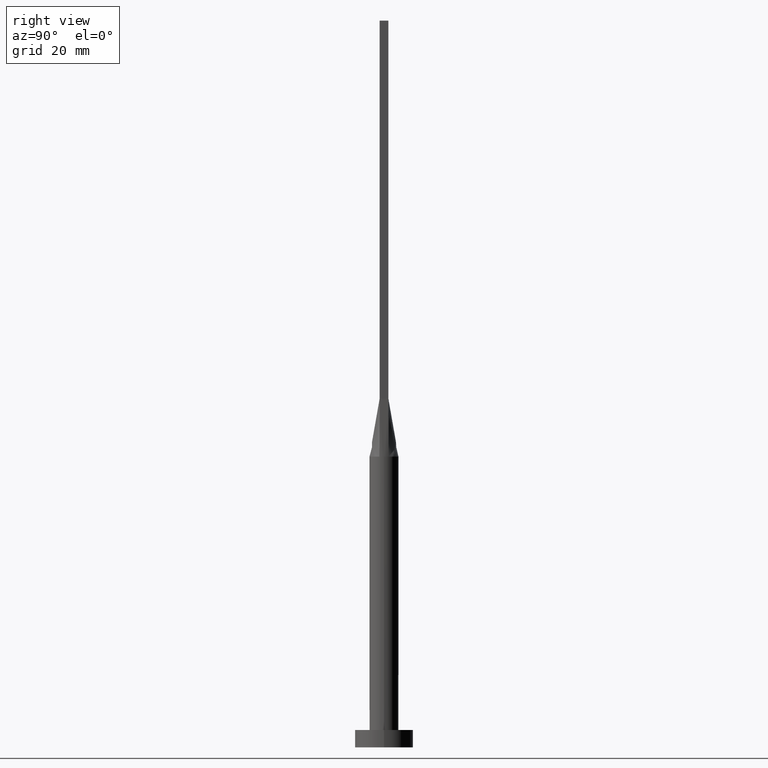
[diagram: clean part render]
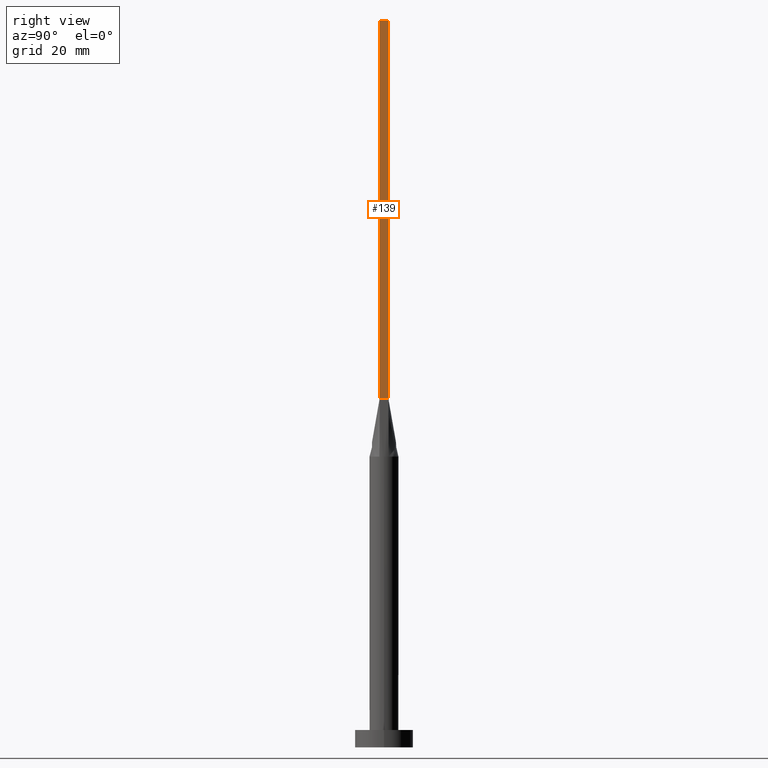
[diagram: same view with one face highlighted and labeled with its STEP entity id]
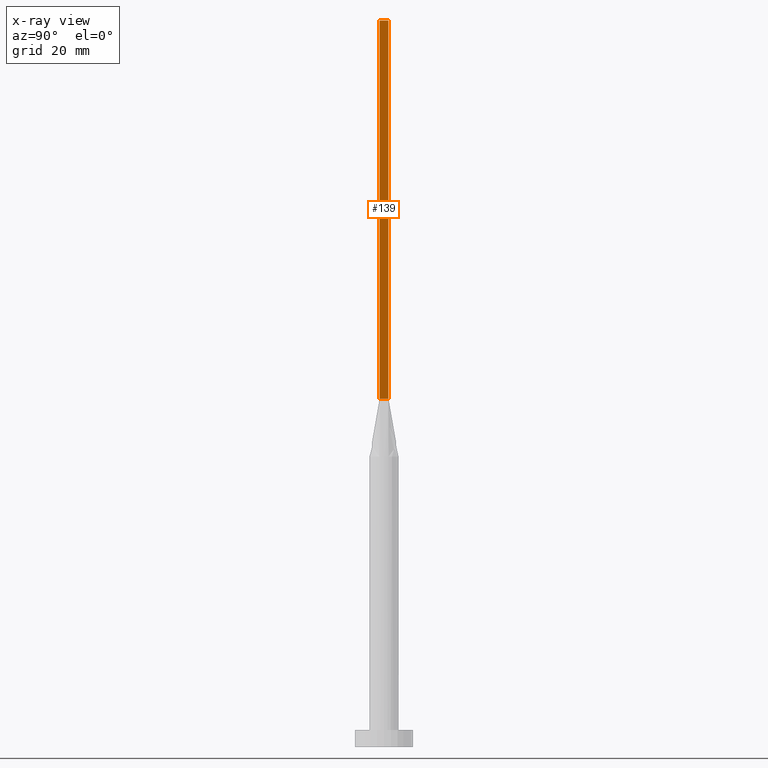
[diagram: x-ray of the same camera — body ghosted, the highlighted face saturated]
A machine part, right view. The second image highlights one B-rep face of the part: STEP entity #139.
The next image is the same camera in x-ray: the body ghosted, the highlighted face saturated — about 0% of this face is hidden behind the body in this view.
In plain terms, the highlighted planar face has unit normal (-1, -0, 0).
Its self-contained STEP definition (entity closure, byte-faithful):
#7 = LINE ( 'NONE', #396, #479 ) ;
#24 = DIRECTION ( 'NONE',  ( -0.000000000000000000, -0.000000000000000000, -1.000000000000000000 ) ) ;
#27 = EDGE_LOOP ( 'NONE', ( #196, #340, #108, #202 ) ) ;
#70 = VERTEX_POINT ( 'NONE', #523 ) ;
#83 = CARTESIAN_POINT ( 'NONE',  ( 2.249999999999999556, 0.7500000000000002220, 60.00000000000000711 ) ) ;
#108 = ORIENTED_EDGE ( 'NONE', *, *, #440, .F. ) ;
#109 = CARTESIAN_POINT ( 'NONE',  ( 2.249999999999999556, 0.7500000000000002220, 125.0000000000000000 ) ) ;
#110 = CARTESIAN_POINT ( 'NONE',  ( 2.250000000000000000, -0.7499999999999997780, 125.0000000000000000 ) ) ;
#125 = VECTOR ( 'NONE', #566, 1000.000000000000000 ) ;
#139 = ADVANCED_FACE ( 'NONE', ( #293 ), #215, .F. ) ;
#144 = LINE ( 'NONE', #483, #357 ) ;
#149 = CARTESIAN_POINT ( 'NONE',  ( 2.250000000000000000, -0.7499999999999997780, 60.00000000000000711 ) ) ;
#164 = VERTEX_POINT ( 'NONE', #83 ) ;
#196 = ORIENTED_EDGE ( 'NONE', *, *, #300, .T. ) ;
#202 = ORIENTED_EDGE ( 'NONE', *, *, #282, .T. ) ;
#206 = VECTOR ( 'NONE', #24, 1000.000000000000000 ) ;
#215 = PLANE ( 'NONE',  #356 ) ;
#282 = EDGE_CURVE ( 'NONE', #70, #392, #567, .T. ) ;
#293 = FACE_OUTER_BOUND ( 'NONE', #27, .T. ) ;
#297 = CARTESIAN_POINT ( 'NONE',  ( 2.250000000000000000, -0.7499999999999997780, 125.0000000000000000 ) ) ;
#300 = EDGE_CURVE ( 'NONE', #392, #164, #144, .T. ) ;
#340 = ORIENTED_EDGE ( 'NONE', *, *, #549, .F. ) ;
#356 = AXIS2_PLACEMENT_3D ( 'NONE', #297, #504, #464 ) ;
#357 = VECTOR ( 'NONE', #486, 1000.000000000000000 ) ;
#378 = LINE ( 'NONE', #109, #125 ) ;
#392 = VERTEX_POINT ( 'NONE', #149 ) ;
#396 = CARTESIAN_POINT ( 'NONE',  ( 2.250000000000000000, -0.7499999999999997780, 125.0000000000000000 ) ) ;
#412 = CARTESIAN_POINT ( 'NONE',  ( 2.249999999999999556, 0.7500000000000002220, 125.0000000000000000 ) ) ;
#415 = VERTEX_POINT ( 'NONE', #412 ) ;
#440 = EDGE_CURVE ( 'NONE', #70, #415, #7, .T. ) ;
#464 = DIRECTION ( 'NONE',  ( 2.891205793294678326E-16, -1.000000000000000000, 0.000000000000000000 ) ) ;
#479 = VECTOR ( 'NONE', #580, 1000.000000000000000 ) ;
#483 = CARTESIAN_POINT ( 'NONE',  ( 2.249999999999999556, 0.7500000000000002220, 60.00000000000000711 ) ) ;
#486 = DIRECTION ( 'NONE',  ( -2.891205793294678326E-16, 1.000000000000000000, -0.000000000000000000 ) ) ;
#504 = DIRECTION ( 'NONE',  ( -1.000000000000000000, -2.891205793294678326E-16, 0.000000000000000000 ) ) ;
#523 = CARTESIAN_POINT ( 'NONE',  ( 2.250000000000000000, -0.7499999999999997780, 125.0000000000000000 ) ) ;
#549 = EDGE_CURVE ( 'NONE', #415, #164, #378, .T. ) ;
#566 = DIRECTION ( 'NONE',  ( -0.000000000000000000, -0.000000000000000000, -1.000000000000000000 ) ) ;
#567 = LINE ( 'NONE', #110, #206 ) ;
#580 = DIRECTION ( 'NONE',  ( -2.891205793294678326E-16, 1.000000000000000000, 0.000000000000000000 ) ) ;